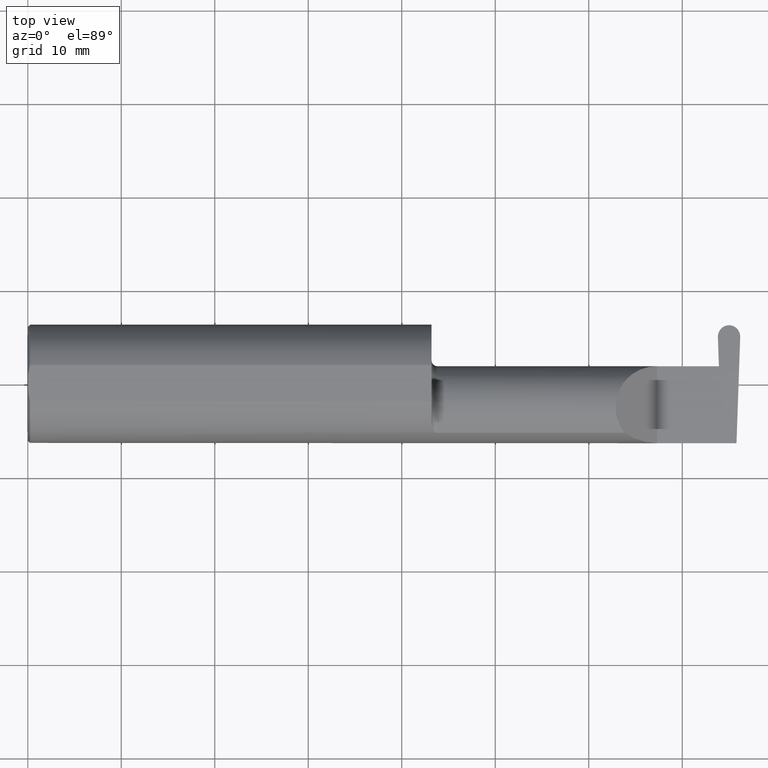
[diagram: clean part render]
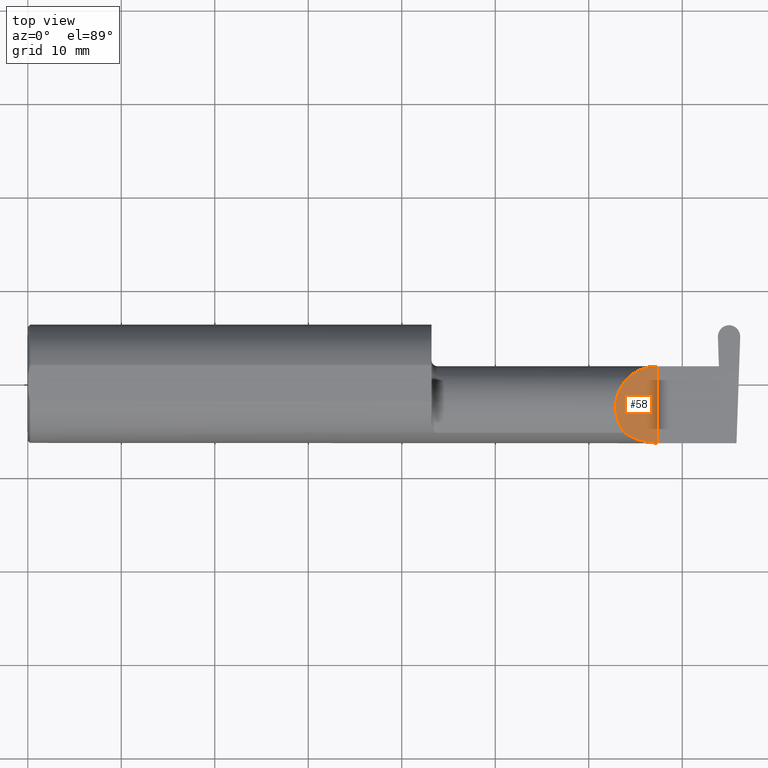
[diagram: same view with one face highlighted and labeled with its STEP entity id]
A machine part, top view. The second image highlights one B-rep face of the part: STEP entity #58.
In plain terms, the highlighted planar face has unit normal (-0.7071, 0, -0.7071).
Its self-contained STEP definition (entity closure, byte-faithful):
#30 = ORIENTED_EDGE ( 'NONE', *, *, #621, .T. ) ;
#36 = VERTEX_POINT ( 'NONE', #596 ) ;
#58 = ADVANCED_FACE ( 'NONE', ( #646 ), #706, .F. ) ;
#106 = CARTESIAN_POINT ( 'NONE',  ( 2.650000000000000355, -0.2500000000000000555, 4.286263797015729199E-17 ) ) ;
#124 = VERTEX_POINT ( 'NONE', #229 ) ;
#131 = CARTESIAN_POINT ( 'NONE',  ( 2.552984868485331127, -0.2355204011147990495, 0.09701513151466824303 ) ) ;
#199 = VECTOR ( 'NONE', #564, 39.37007874015748143 ) ;
#204 = ORIENTED_EDGE ( 'NONE', *, *, #536, .F. ) ;
#212 = CARTESIAN_POINT ( 'NONE',  ( 2.482823929317965472, 0.07414999999999999369, 0.1671760706820332731 ) ) ;
#213 = DIRECTION ( 'NONE',  ( -0.7071067811865439090, 0.000000000000000000, -0.7071067811865511255 ) ) ;
#222 = ORIENTED_EDGE ( 'NONE', *, *, #657, .F. ) ;
#229 = CARTESIAN_POINT ( 'NONE',  ( 2.650000000000000355, 0.07414999999999995206, 1.592040838891556877E-16 ) ) ;
#243 = AXIS2_PLACEMENT_3D ( 'NONE', #106, #213, #372 ) ;
#372 = DIRECTION ( 'NONE',  ( -0.7071067811865511255, 0.000000000000000000, 0.7071067811865439090 ) ) ;
#379 = CARTESIAN_POINT ( 'NONE',  ( 2.409263745716142768, -0.07597241004310609225, 0.2407362542838549779 ) ) ;
#399 = CARTESIAN_POINT ( 'NONE',  ( 2.600434159100402987, -0.2498499999999999888, 0.04956584089959736872 ) ) ;
#433 = CARTESIAN_POINT ( 'NONE',  ( 2.650000000000000355, -0.2500000000000000555, 4.286263797015729199E-17 ) ) ;
#456 = CARTESIAN_POINT ( 'NONE',  ( 2.650000000000000355, 0.07414999999999995206, 1.592040838891556877E-16 ) ) ;
#512 =( BOUNDED_CURVE ( )  B_SPLINE_CURVE ( 3, ( #676, #399, #131, #622 ),
 .UNSPECIFIED., .F., .F. ) 
 B_SPLINE_CURVE_WITH_KNOTS ( ( 4, 4 ),
 ( 4.712388980384689674, 5.298966915116351650 ),
 .UNSPECIFIED. ) 
 CURVE ( )  GEOMETRIC_REPRESENTATION_ITEM ( )  RATIONAL_B_SPLINE_CURVE ( ( 1.000000000000000000, 0.9715321379117535239, 0.9715321379117535239, 1.000000000000000000 ) ) 
 REPRESENTATION_ITEM ( '' )  );
#516 = EDGE_LOOP ( 'NONE', ( #204, #222, #30 ) ) ;
#524 = VERTEX_POINT ( 'NONE', #636 ) ;
#536 = EDGE_CURVE ( 'NONE', #36, #124, #639, .T. ) ;
#564 = DIRECTION ( 'NONE',  ( -0.000000000000000000, 1.000000000000000000, -0.000000000000000000 ) ) ;
#596 = CARTESIAN_POINT ( 'NONE',  ( 2.511704467739031443, -0.2080850024789284436, 0.1382955322609674687 ) ) ;
#621 = EDGE_CURVE ( 'NONE', #524, #124, #625, .T. ) ;
#622 = CARTESIAN_POINT ( 'NONE',  ( 2.511704467739031443, -0.2080850024789284436, 0.1382955322609674687 ) ) ;
#625 = LINE ( 'NONE', #433, #199 ) ;
#636 = CARTESIAN_POINT ( 'NONE',  ( 2.650000000000000355, -0.2498499999999999610, 4.286263797015729199E-17 ) ) ;
#639 =( BOUNDED_CURVE ( )  B_SPLINE_CURVE ( 3, ( #655, #379, #212, #456 ),
 .UNSPECIFIED., .F., .F. ) 
 B_SPLINE_CURVE_WITH_KNOTS ( ( 4, 4 ),
 ( 5.623622464215686456, 7.853981633974482790 ),
 .UNSPECIFIED. ) 
 CURVE ( )  GEOMETRIC_REPRESENTATION_ITEM ( )  RATIONAL_B_SPLINE_CURVE ( ( 1.000000000000000000, 0.6266774836124012760, 0.6266774836124012760, 1.000000000000000000 ) ) 
 REPRESENTATION_ITEM ( '' )  );
#646 = FACE_OUTER_BOUND ( 'NONE', #516, .T. ) ;
#655 = CARTESIAN_POINT ( 'NONE',  ( 2.511704467739031443, -0.2080850024789284436, 0.1382955322609674687 ) ) ;
#657 = EDGE_CURVE ( 'NONE', #524, #36, #512, .T. ) ;
#676 = CARTESIAN_POINT ( 'NONE',  ( 2.650000000000000355, -0.2498499999999999610, 4.286263797015729199E-17 ) ) ;
#706 = PLANE ( 'NONE',  #243 ) ;